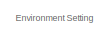
[diagram: root canvas - part 1/3, top left region]
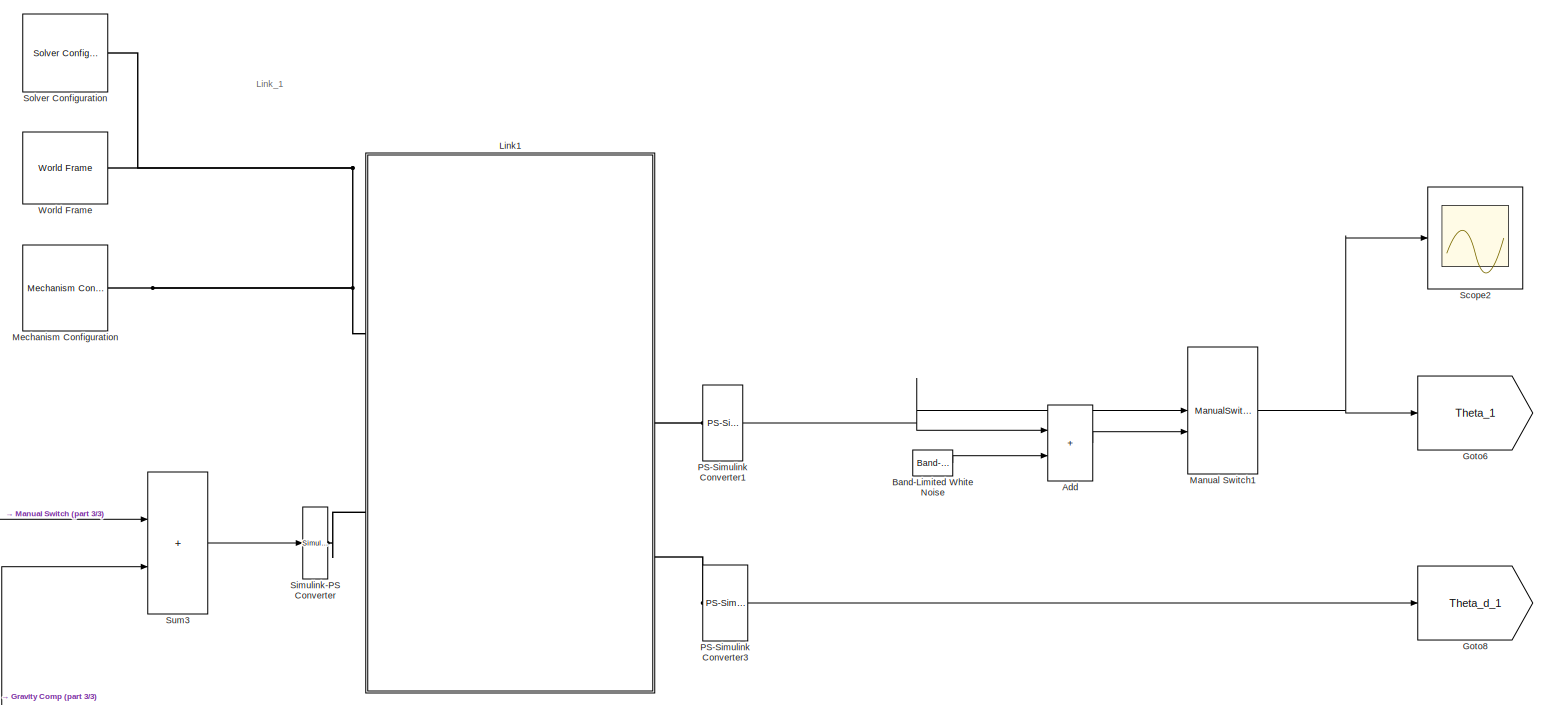
[diagram: root canvas - part 2/3, middle right region]
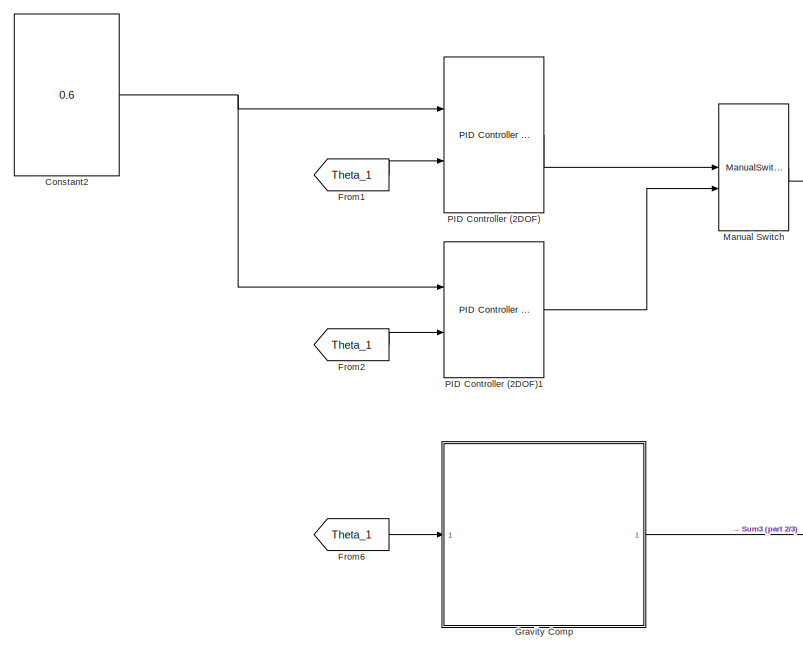
[diagram: root canvas - part 3/3, bottom left region]
MODEL slx_3c225782deca
KIND model
CONFIG AbsTol = auto
CONFIG EnableMultiTasking = off
CONFIG FixedStep = auto
CONFIG MaxStep = auto
CONFIG MinStep = auto
CONFIG RelTol = 1e-3
CONFIG SampleTimeConstraint = Unconstrained
CONFIG Solver = VariableStepAuto
CONFIG SolverName = VariableStepAuto
CONFIG StartTime = 0.0
CONFIG StopTime = 10
BLOCK [Sum] Add
  IconShape = rectangular
  Ports = [2, 1]
BLOCK [Reference] Band-Limited White Noise  REF=simulink/Sources/Band-Limited
White Noise
  Ports = [0, 1]
  SourceBlock = simulink/Sources/Band-Limited\nWhite Noise
  SourceType = Band-Limited White Noise.
BLOCK [Constant] Constant2
  Value = 0.6
BLOCK [From] From1
  GotoTag = Theta_1
BLOCK [From] From2
  GotoTag = Theta_1
BLOCK [From] From6
  GotoTag = Theta_1
BLOCK [Goto] Goto6
  GotoTag = Theta_1
BLOCK [Goto] Goto8
  GotoTag = Theta_d_1
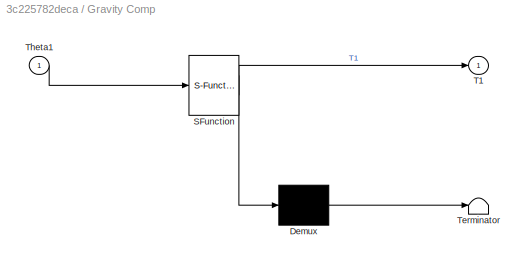
BLOCK [SubSystem] Gravity Comp
  ErrorFcn = Stateflow.Translate.translate
  PermitHierarchicalResolution = ExplicitOnly
  Ports = [1, 1]
  SFBlockType = MATLAB Function
  TreatAsAtomicUnit = on
BLOCK [Demux] Gravity Comp/ Demux 
  Outputs = 1
  Ports = [1, 1]
BLOCK [S-Function] Gravity Comp/ SFunction 
  EnableBusSupport = on
  FunctionName = sf_sfun
  PortCounts = [1 2]
  Ports = [1, 2]
  SFcnIsStateOwnerBlock = off
  SFunctionDeploymentMode = off
  Tag = Stateflow S-Function DEMO_CTRL_1DOF_PID_2018B 2
BLOCK [Terminator] Gravity Comp/ Terminator 
BLOCK [Outport] Gravity Comp/T1
  VectorParamsAs1DForOutWhenUnconnected = off
BLOCK [Inport] Gravity Comp/Theta1
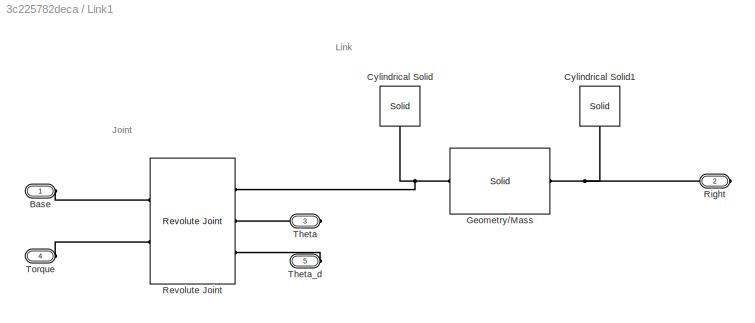
BLOCK [SubSystem] Link1
  Ports = [0, 0, 0, 0, 0, 2, 3]
BLOCK [PMIOPort] Link1/Base
  Side = Left
BLOCK [Reference] Link1/Cylindrical Solid  REF=sm_lib/Body Elements/Solid
  Ports = [0, 0, 0, 0, 0, 0, 1]
  SourceBlock = sm_lib/Body Elements/Solid
  SourceType = Cylindrical Solid
BLOCK [Reference] Link1/Cylindrical Solid1  REF=sm_lib/Body Elements/Solid
  Ports = [0, 0, 0, 0, 0, 0, 1]
  SourceBlock = sm_lib/Body Elements/Solid
  SourceType = Cylindrical Solid
BLOCK [Reference] Link1/Geometry//Mass  REF=sm_lib/Body Elements/Solid
  Ports = [0, 0, 0, 0, 0, 1, 1]
  SourceBlock = sm_lib/Body Elements/Solid
  SourceType = Brick Solid
BLOCK [Reference] Link1/Revolute Joint  REF=sm_lib/Joints/Revolute Joint
  Ports = [0, 0, 0, 0, 0, 2, 3]
  SourceBlock = sm_lib/Joints/Revolute Joint
  SourceType = Revolute Joint
BLOCK [PMIOPort] Link1/Right
  Port = 2
  Side = Right
BLOCK [PMIOPort] Link1/Theta
  Port = 3
  Side = Right
BLOCK [PMIOPort] Link1/Theta_d
  Port = 5
  Side = Right
BLOCK [PMIOPort] Link1/Torque
  Port = 4
  Side = Left
BLOCK [ManualSwitch] Manual Switch
  CurrentSetting = 0
BLOCK [ManualSwitch] Manual Switch1
  CurrentSetting = 0
BLOCK [Reference] Mechanism Configuration  REF=sm_lib/Utilities/Mechanism
Configuration
  Ports = [0, 0, 0, 0, 0, 0, 1]
  SourceBlock = sm_lib/Utilities/Mechanism\nConfiguration
  SourceType = Mechanism\nConfiguration
BLOCK [Reference] PID Controller (2DOF)  REF=simulink/Continuous/PID Controller (2DOF)
  Ports = [2, 1]
  SourceBlock = simulink/Continuous/PID Controller (2DOF)
  SourceType = PID 2dof
BLOCK [Reference] PID Controller (2DOF)1  REF=simulink/Continuous/PID Controller (2DOF)
  Ports = [2, 1]
  SourceBlock = simulink/Continuous/PID Controller (2DOF)
  SourceType = PID 2dof
BLOCK [Reference] PS-Simulink Converter1  REF=nesl_utility/PS-Simulink
Converter
  Ports = [0, 1, 0, 0, 0, 1]
  SourceBlock = nesl_utility/PS-Simulink\nConverter
  SourceType = PS-Simulink\nConverter
BLOCK [Reference] PS-Simulink Converter3  REF=nesl_utility/PS-Simulink
Converter
  Ports = [0, 1, 0, 0, 0, 1]
  SourceBlock = nesl_utility/PS-Simulink\nConverter
  SourceType = PS-Simulink\nConverter
BLOCK [Scope] Scope2
  Floating = off
  NumInputPorts = 1
  Ports = [1]
  ScopeSpecificationString = Simulink.scopes.TimeScopeBlockCfg('CurrentConfiguration', extmgr.ConfigurationSet(extmgr.Configuration('Core','General UI',true),extmgr.Configuration('Core','Source UI',true),extmgr.Configuration('Sources','WiredSimulink',true,'DataLoggingVariableName','ScopeData2'),extmgr.Configuration('Visuals','Time Domain',true,'SerializedDisplays',{struct('MinYLimReal','-0.89644','MaxYLimReal','1.59475','YLab...<+1400ch>
BLOCK [Reference] Simulink-PS Converter  REF=nesl_utility/Simulink-PS
Converter
  Ports = [1, 0, 0, 0, 0, 0, 1]
  SourceBlock = nesl_utility/Simulink-PS\nConverter
  SourceType = Simulink-PS\nConverter
BLOCK [Reference] Solver Configuration  REF=nesl_utility/Solver
Configuration
  Ports = [0, 0, 0, 0, 0, 0, 1]
  SourceBlock = nesl_utility/Solver\nConfiguration
  SourceType = Solver\nConfiguration
BLOCK [Sum] Sum3
  IconShape = rectangular
  Ports = [2, 1]
BLOCK [Reference] World Frame  REF=sm_lib/Frames and
Transforms/World Frame
  Ports = [0, 0, 0, 0, 0, 0, 1]
  SourceBlock = sm_lib/Frames and\nTransforms/World Frame
  SourceType = World Frame
ANNOTATION (root): Environment Setting
ANNOTATION (root): Link_1
ANNOTATION Link1: Joint
ANNOTATION Link1: Link
LINE Add:1 -> Manual Switch1:2
LINE Band-Limited White Noise:1 -> Add:2
NET Constant2:1 -> PID Controller (2DOF)1:1, PID Controller (2DOF):1
LINE From1:1 -> PID Controller (2DOF):2
LINE From2:1 -> PID Controller (2DOF)1:2
LINE From6:1 -> Gravity Comp:1
LINE Gravity Comp:1 -> Sum3:2
NET Manual Switch1:1 -> Goto6:1, Scope2:1
LINE Manual Switch:1 -> Sum3:1
LINE PID Controller (2DOF)1:1 -> Manual Switch:2
LINE PID Controller (2DOF):1 -> Manual Switch:1
NET PS-Simulink Converter1:1 -> Add:1, Manual Switch1:1
LINE PS-Simulink Converter3:1 -> Goto8:1
LINE Sum3:1 -> Simulink-PS Converter:1
PLINE Link1/Base:RConn1 -- Link1/Revolute Joint:LConn1
PNET net1: Link1/Cylindrical Solid1:RConn1 -- Link1/Geometry//Mass:RConn1 -- Link1/Right:RConn1
PNET net2: Link1/Cylindrical Solid:RConn1 -- Link1/Geometry//Mass:LConn1 -- Link1/Revolute Joint:RConn1
PLINE Link1/Revolute Joint:LConn2 -- Link1/Torque:RConn1
PLINE Link1/Revolute Joint:RConn2 -- Link1/Theta:RConn1
PLINE Link1/Revolute Joint:RConn3 -- Link1/Theta_d:RConn1
PNET net3: Link1:LConn1 -- Mechanism Configuration:RConn1 -- Solver Configuration:RConn1 -- World Frame:RConn1
PLINE Link1:LConn2 -- Simulink-PS Converter:RConn1
PLINE Link1:RConn2 -- PS-Simulink Converter1:LConn1
PLINE Link1:RConn3 -- PS-Simulink Converter3:LConn1
note: NET lines group one-source signal fan-out (src -> all destinations, sorted); 1:1 wires keep LINE; PNET lines group multi-terminal physical nets as a canonical sorted terminal list (undirected conserving connections); 2-terminal nets keep the pairwise PLINE form
CHART Gravity Comp states=1 transitions=1
  STATE_LABEL 'eML_blk_kernel()'
  STATE_LABEL 'SCRIPT:\nfunction T1  = GravityComp(Theta1)\n\ng = -9.80665;\n\nm1 = 1.0;\nL1 = 0.25;\nLc1 = 0.125;\n\n\nT1 = - m1 * Lc1  *cos(Theta1) * g; \n\n\n\n'
